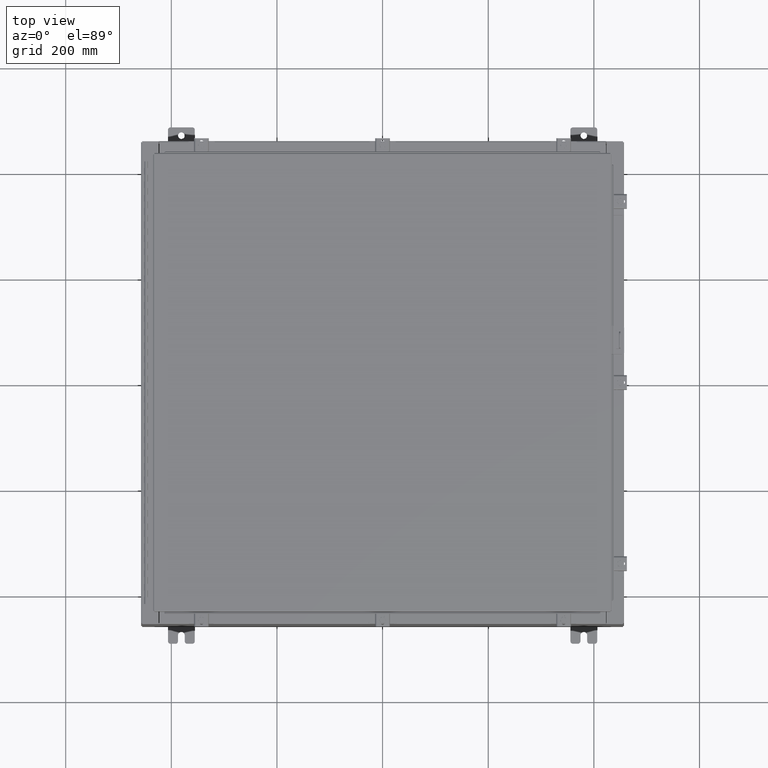
[diagram: clean part render]
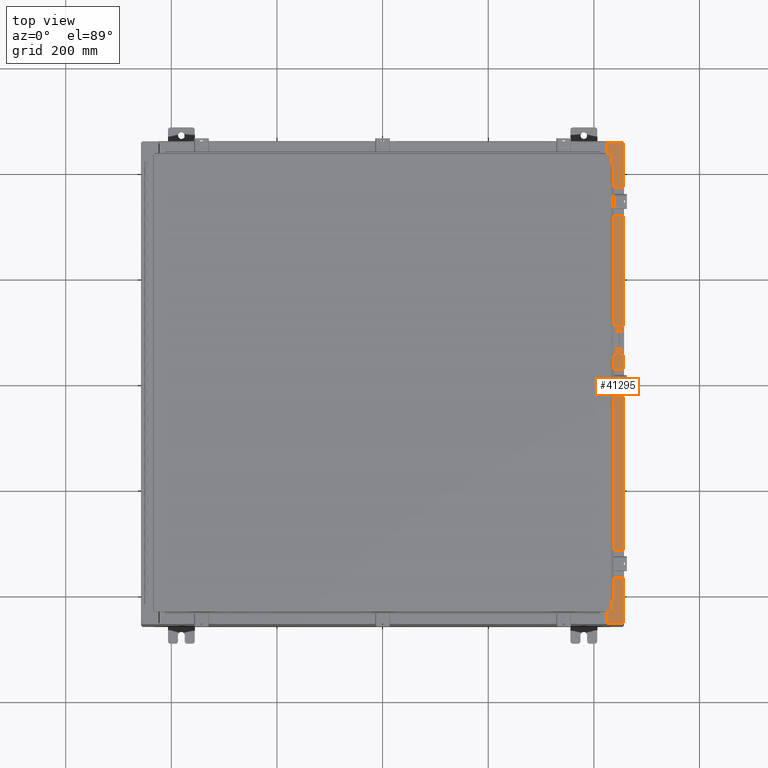
[diagram: same view with one face highlighted and labeled with its STEP entity id]
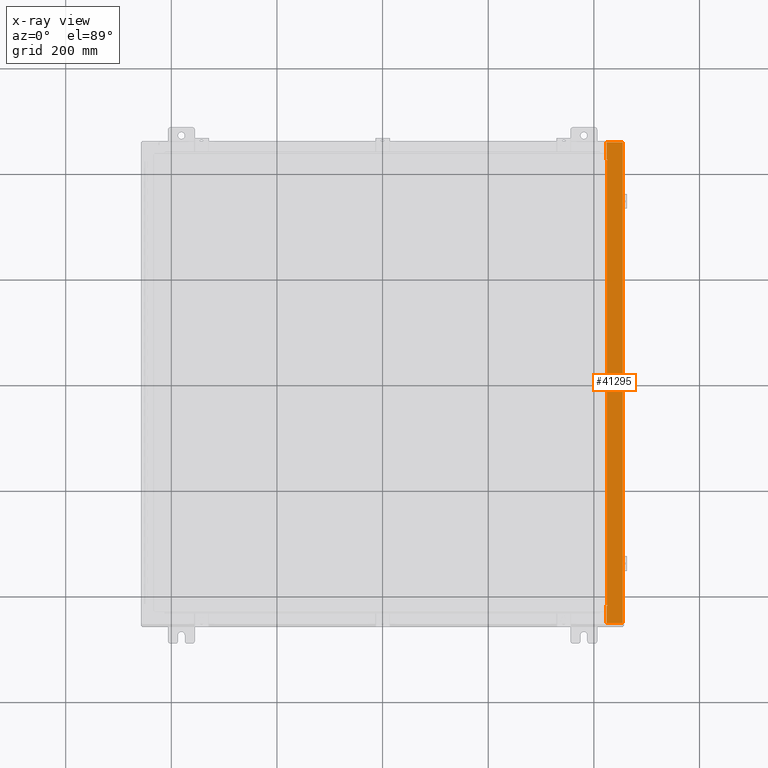
[diagram: x-ray of the same camera — body ghosted, the highlighted face saturated]
A machine part, top view. The second image highlights one B-rep face of the part: STEP entity #41295.
The next image is the same camera in x-ray: the body ghosted, the highlighted face saturated — about 0% of this face is hidden behind the body in this view.
In plain terms, the highlighted planar face has unit normal (-0, 0, -1).
Its self-contained STEP definition (entity closure, byte-faithful):
#160 = CARTESIAN_POINT ( 'NONE',  ( 16.71270000000004400, 16.59375000000000000, 11.92530000000001200 ) ) ;
#559 = CARTESIAN_POINT ( 'NONE',  ( 16.69970000000004300, 0.0000000000000000000, 11.92530000000000900 ) ) ;
#1578 = ORIENTED_EDGE ( 'NONE', *, *, #9919, .F. ) ;
#1923 = ORIENTED_EDGE ( 'NONE', *, *, #20723, .T. ) ;
#2147 = VECTOR ( 'NONE', #42559, 39.37007874015748100 ) ;
#2699 = DIRECTION ( 'NONE',  ( -7.132762385546384700E-015, 0.0000000000000000000, -1.000000000000000000 ) ) ;
#3265 = LINE ( 'NONE', #42416, #2147 ) ;
#3945 = VERTEX_POINT ( 'NONE', #160 ) ;
#4112 = ORIENTED_EDGE ( 'NONE', *, *, #38623, .T. ) ;
#4347 = AXIS2_PLACEMENT_3D ( 'NONE', #19971, #2699, #27159 ) ;
#4712 = ORIENTED_EDGE ( 'NONE', *, *, #33407, .F. ) ;
#6021 = LINE ( 'NONE', #33560, #42886 ) ;
#6351 = ORIENTED_EDGE ( 'NONE', *, *, #10253, .F. ) ;
#7020 = ORIENTED_EDGE ( 'NONE', *, *, #9039, .T. ) ;
#7526 = EDGE_CURVE ( 'NONE', #32865, #15226, #13731, .T. ) ;
#7635 = LINE ( 'NONE', #14135, #43356 ) ;
#7653 = DIRECTION ( 'NONE',  ( 7.132762385546384700E-015, 0.0000000000000000000, 1.000000000000000000 ) ) ;
#7680 = DIRECTION ( 'NONE',  ( 0.0000000000000000000, -1.000000000000000000, 0.0000000000000000000 ) ) ;
#8016 = VECTOR ( 'NONE', #20527, 39.37007874015748100 ) ;
#8278 = CARTESIAN_POINT ( 'NONE',  ( 16.69970000000004300, -16.63110000000000400, 11.92530000000000900 ) ) ;
#8863 = CARTESIAN_POINT ( 'NONE',  ( 16.75005000000004100, -16.63110000000000000, 11.92530000000000900 ) ) ;
#9039 = EDGE_CURVE ( 'NONE', #41032, #18726, #7635, .T. ) ;
#9827 = CARTESIAN_POINT ( 'NONE',  ( 16.75005000000004100, -16.59375000000000000, 11.92530000000000900 ) ) ;
#9919 = EDGE_CURVE ( 'NONE', #41032, #23266, #36599, .T. ) ;
#10031 = FACE_OUTER_BOUND ( 'NONE', #29314, .T. ) ;
#10253 = EDGE_CURVE ( 'NONE', #40375, #3945, #33905, .T. ) ;
#10618 = CARTESIAN_POINT ( 'NONE',  ( 16.69970000000004300, 16.63110000000000000, 11.92530000000000900 ) ) ;
#10754 = CARTESIAN_POINT ( 'NONE',  ( 16.75005000000004100, -16.61242500000000200, 11.92530000000001200 ) ) ;
#11378 = CARTESIAN_POINT ( 'NONE',  ( 16.71270000000004400, -16.59375000000000000, 11.92530000000001200 ) ) ;
#11440 = DIRECTION ( 'NONE',  ( -0.0000000000000000000, -1.000000000000000000, -0.0000000000000000000 ) ) ;
#11620 = CARTESIAN_POINT ( 'NONE',  ( 17.91230000000004100, 17.92530000000000000, 11.92530000000000400 ) ) ;
#11737 = CARTESIAN_POINT ( 'NONE',  ( 17.91230000000004100, -17.92530000000000000, 11.92530000000000400 ) ) ;
#12788 = DIRECTION ( 'NONE',  ( 0.0000000000000000000, -1.000000000000000000, 0.0000000000000000000 ) ) ;
#12827 = EDGE_CURVE ( 'NONE', #21437, #16451, #35893, .T. ) ;
#12918 = CARTESIAN_POINT ( 'NONE',  ( 17.91230000000004100, -17.92530000000000000, 11.92530000000000400 ) ) ;
#13216 = EDGE_CURVE ( 'NONE', #3945, #27914, #3265, .T. ) ;
#13261 = AXIS2_PLACEMENT_3D ( 'NONE', #28526, #7653, #31947 ) ;
#13665 = CARTESIAN_POINT ( 'NONE',  ( 16.75005000000004100, -16.59375000000000000, 11.92530000000001200 ) ) ;
#13668 = DIRECTION ( 'NONE',  ( -1.000000000000000000, 4.340572780400098900E-014, -4.340572780400098900E-014 ) ) ;
#13731 = CIRCLE ( 'NONE', #33420, 0.01867499999999949400 ) ;
#13857 = CARTESIAN_POINT ( 'NONE',  ( 16.75005000000004100, 16.63110000000000000, 11.92530000000001200 ) ) ;
#14135 = CARTESIAN_POINT ( 'NONE',  ( 8.532114493236880700E-014, 17.92530000000000000, 11.92530000000013000 ) ) ;
#14231 = DIRECTION ( 'NONE',  ( -1.000000000000000000, 0.0000000000000000000, 7.132762385546384700E-015 ) ) ;
#14483 = CARTESIAN_POINT ( 'NONE',  ( 8.532114493236880700E-014, -17.92530000000000000, 11.92530000000013000 ) ) ;
#15226 = VERTEX_POINT ( 'NONE', #9827 ) ;
#15369 = CARTESIAN_POINT ( 'NONE',  ( 16.69970000000004300, -16.63110000000000400, 11.92530000000000900 ) ) ;
#16312 = VECTOR ( 'NONE', #13668, 39.37007874015748100 ) ;
#16451 = VERTEX_POINT ( 'NONE', #10618 ) ;
#16985 = ORIENTED_EDGE ( 'NONE', *, *, #37145, .T. ) ;
#18726 = VERTEX_POINT ( 'NONE', #20138 ) ;
#18965 = EDGE_CURVE ( 'NONE', #27914, #21437, #22595, .T. ) ;
#19971 = CARTESIAN_POINT ( 'NONE',  ( 8.532114493236880700E-014, 0.0000000000000000000, 11.92530000000013000 ) ) ;
#20138 = CARTESIAN_POINT ( 'NONE',  ( 16.69970000000004300, 17.92530000000000000, 11.92530000000000900 ) ) ;
#20433 = VECTOR ( 'NONE', #11440, 39.37007874015748100 ) ;
#20527 = DIRECTION ( 'NONE',  ( -1.000000000000000000, 0.0000000000000000000, 0.0000000000000000000 ) ) ;
#20723 = EDGE_CURVE ( 'NONE', #18726, #16451, #22518, .T. ) ;
#21104 = CARTESIAN_POINT ( 'NONE',  ( 16.69970000000004300, -17.92530000000000000, 11.92530000000000900 ) ) ;
#21183 = LINE ( 'NONE', #14483, #38434 ) ;
#21430 = VECTOR ( 'NONE', #7680, 39.37007874015748100 ) ;
#21437 = VERTEX_POINT ( 'NONE', #36675 ) ;
#22518 = LINE ( 'NONE', #559, #21430 ) ;
#22595 = CIRCLE ( 'NONE', #13261, 0.01867499999999949400 ) ;
#23266 = VERTEX_POINT ( 'NONE', #12918 ) ;
#23502 = ORIENTED_EDGE ( 'NONE', *, *, #13216, .F. ) ;
#25780 = VERTEX_POINT ( 'NONE', #8278 ) ;
#25783 = VECTOR ( 'NONE', #39545, 39.37007874015748100 ) ;
#27159 = DIRECTION ( 'NONE',  ( -1.000000000000000000, 0.0000000000000000000, 7.132762385546384700E-015 ) ) ;
#27769 = CARTESIAN_POINT ( 'NONE',  ( 16.75005000000004100, 16.59375000000000000, 11.92530000000000900 ) ) ;
#27914 = VERTEX_POINT ( 'NONE', #27769 ) ;
#28526 = CARTESIAN_POINT ( 'NONE',  ( 16.75005000000004100, 16.61242500000000200, 11.92530000000001200 ) ) ;
#28630 = ORIENTED_EDGE ( 'NONE', *, *, #43995, .F. ) ;
#28666 = ORIENTED_EDGE ( 'NONE', *, *, #12827, .F. ) ;
#29314 = EDGE_LOOP ( 'NONE', ( #4712, #16985, #4112, #1578, #7020, #1923, #28666, #45050, #23502, #6351, #28630, #30278 ) ) ;
#30278 = ORIENTED_EDGE ( 'NONE', *, *, #7526, .F. ) ;
#31808 = DIRECTION ( 'NONE',  ( 1.000000000000000000, 0.0000000000000000000, -7.132762385546384700E-015 ) ) ;
#31947 = DIRECTION ( 'NONE',  ( 1.000000000000000000, 0.0000000000000000000, 0.0000000000000000000 ) ) ;
#32835 = VECTOR ( 'NONE', #39266, 39.37007874015748100 ) ;
#32865 = VERTEX_POINT ( 'NONE', #8863 ) ;
#33407 = EDGE_CURVE ( 'NONE', #25780, #32865, #33808, .T. ) ;
#33420 = AXIS2_PLACEMENT_3D ( 'NONE', #10754, #42211, #43449 ) ;
#33560 = CARTESIAN_POINT ( 'NONE',  ( 16.69970000000004300, 0.0000000000000000000, 11.92530000000000900 ) ) ;
#33808 = LINE ( 'NONE', #15369, #25783 ) ;
#33905 = LINE ( 'NONE', #39234, #32835 ) ;
#34591 = LINE ( 'NONE', #13665, #8016 ) ;
#35893 = LINE ( 'NONE', #13857, #16312 ) ;
#36064 = VERTEX_POINT ( 'NONE', #21104 ) ;
#36599 = LINE ( 'NONE', #11737, #20433 ) ;
#36675 = CARTESIAN_POINT ( 'NONE',  ( 16.75005000000004100, 16.63110000000000000, 11.92530000000000900 ) ) ;
#37145 = EDGE_CURVE ( 'NONE', #25780, #36064, #6021, .T. ) ;
#37149 = PLANE ( 'NONE',  #4347 ) ;
#38434 = VECTOR ( 'NONE', #31808, 39.37007874015748100 ) ;
#38623 = EDGE_CURVE ( 'NONE', #36064, #23266, #21183, .T. ) ;
#39234 = CARTESIAN_POINT ( 'NONE',  ( 16.71270000000004400, -16.59375000000000000, 11.92530000000001200 ) ) ;
#39266 = DIRECTION ( 'NONE',  ( -0.0000000000000000000, 1.000000000000000000, -0.0000000000000000000 ) ) ;
#39545 = DIRECTION ( 'NONE',  ( 1.000000000000000000, 4.340572780400098900E-014, 4.340572780400098900E-014 ) ) ;
#40375 = VERTEX_POINT ( 'NONE', #11378 ) ;
#41032 = VERTEX_POINT ( 'NONE', #11620 ) ;
#41295 = ADVANCED_FACE ( 'NONE', ( #10031 ), #37149, .F. ) ;
#42211 = DIRECTION ( 'NONE',  ( 7.132762385546384700E-015, 0.0000000000000000000, 1.000000000000000000 ) ) ;
#42416 = CARTESIAN_POINT ( 'NONE',  ( 16.71270000000004400, 16.59375000000000000, 11.92530000000001200 ) ) ;
#42559 = DIRECTION ( 'NONE',  ( 1.000000000000000000, 0.0000000000000000000, 0.0000000000000000000 ) ) ;
#42886 = VECTOR ( 'NONE', #12788, 39.37007874015748100 ) ;
#43356 = VECTOR ( 'NONE', #14231, 39.37007874015748100 ) ;
#43449 = DIRECTION ( 'NONE',  ( 1.000000000000000000, 0.0000000000000000000, 0.0000000000000000000 ) ) ;
#43995 = EDGE_CURVE ( 'NONE', #15226, #40375, #34591, .T. ) ;
#45050 = ORIENTED_EDGE ( 'NONE', *, *, #18965, .F. ) ;